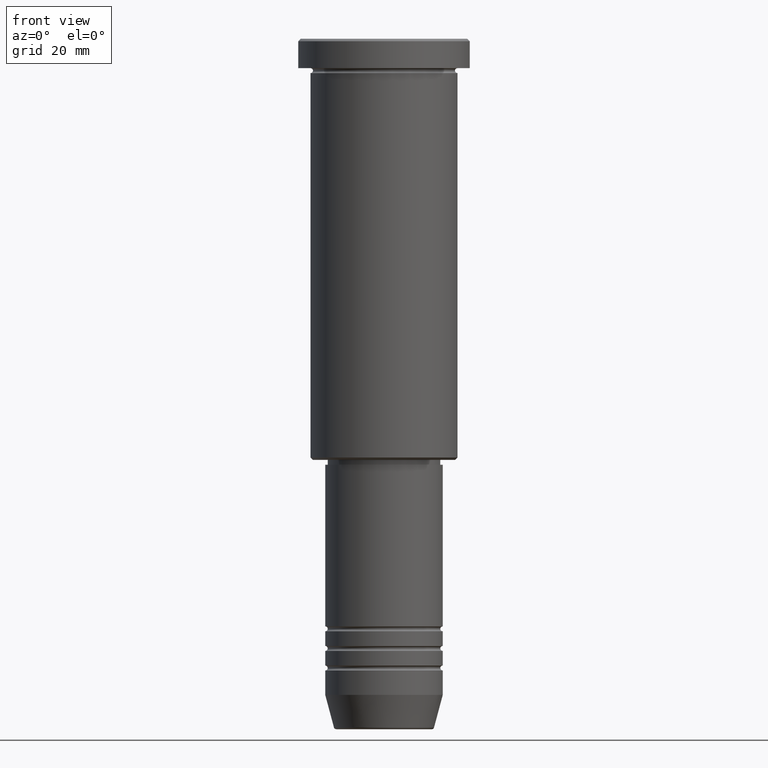
[diagram: clean part render]
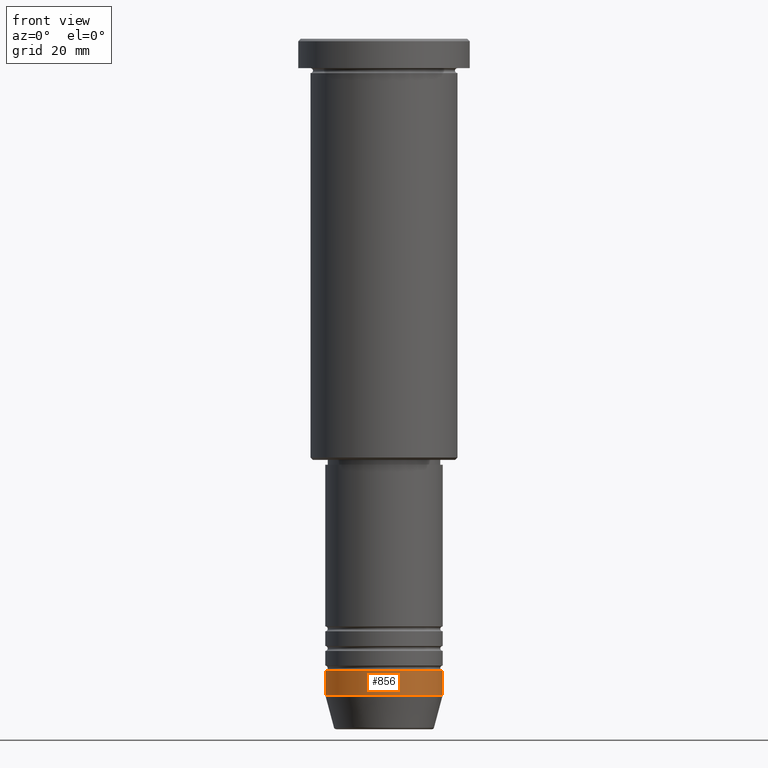
[diagram: same view with one face highlighted and labeled with its STEP entity id]
A machine part, front view. The second image highlights one B-rep face of the part: STEP entity #856.
In plain terms, the highlighted cylindrical surface (partial cylindrical patch) has radius 12 mm, axis along (-0, -0, 1).
Its self-contained STEP definition (entity closure, byte-faithful):
#29 = CARTESIAN_POINT ( 'NONE',  ( 0.000000000000000000, 0.000000000000000000, -134.0000000000000000 ) ) ;
#35 = ORIENTED_EDGE ( 'NONE', *, *, #421, .F. ) ;
#36 = EDGE_CURVE ( 'NONE', #484, #828, #177, .T. ) ;
#52 = AXIS2_PLACEMENT_3D ( 'NONE', #570, #754, #56 ) ;
#56 = DIRECTION ( 'NONE',  ( 1.000000000000000000, 0.000000000000000000, 0.000000000000000000 ) ) ;
#76 = CARTESIAN_POINT ( 'NONE',  ( -12.00000000000000000, 1.469576158976823947E-15, 0.000000000000000000 ) ) ;
#88 = CARTESIAN_POINT ( 'NONE',  ( -12.00000000000000000, 1.469576158976823947E-15, -134.0000000000000000 ) ) ;
#95 = CARTESIAN_POINT ( 'NONE',  ( 12.00000000000000000, 0.000000000000000000, -134.0000000000000000 ) ) ;
#172 = CARTESIAN_POINT ( 'NONE',  ( 12.00000000000000000, 0.000000000000000000, 0.000000000000000000 ) ) ;
#177 = LINE ( 'NONE', #172, #418 ) ;
#246 = ORIENTED_EDGE ( 'NONE', *, *, #36, .T. ) ;
#265 = DIRECTION ( 'NONE',  ( -0.000000000000000000, -0.000000000000000000, 1.000000000000000000 ) ) ;
#340 = LINE ( 'NONE', #76, #1081 ) ;
#341 = CIRCLE ( 'NONE', #476, 12.00000000000000000 ) ;
#351 = DIRECTION ( 'NONE',  ( -0.000000000000000000, -0.000000000000000000, 1.000000000000000000 ) ) ;
#418 = VECTOR ( 'NONE', #351, 1000.000000000000000 ) ;
#421 = EDGE_CURVE ( 'NONE', #727, #803, #340, .T. ) ;
#464 = CARTESIAN_POINT ( 'NONE',  ( 12.00000000000000000, 0.000000000000000000, -129.0000000000000000 ) ) ;
#474 = DIRECTION ( 'NONE',  ( -0.000000000000000000, -0.000000000000000000, 1.000000000000000000 ) ) ;
#476 = AXIS2_PLACEMENT_3D ( 'NONE', #29, #474, #663 ) ;
#484 = VERTEX_POINT ( 'NONE', #95 ) ;
#570 = CARTESIAN_POINT ( 'NONE',  ( 0.000000000000000000, 0.000000000000000000, -129.0000000000000000 ) ) ;
#596 = EDGE_LOOP ( 'NONE', ( #35, #1020, #246, #1132 ) ) ;
#621 = EDGE_CURVE ( 'NONE', #727, #484, #341, .T. ) ;
#652 = CYLINDRICAL_SURFACE ( 'NONE', #792, 12.00000000000000000 ) ;
#659 = CARTESIAN_POINT ( 'NONE',  ( 0.000000000000000000, 0.000000000000000000, 0.000000000000000000 ) ) ;
#661 = EDGE_CURVE ( 'NONE', #803, #828, #1087, .T. ) ;
#663 = DIRECTION ( 'NONE',  ( 1.000000000000000000, 0.000000000000000000, 0.000000000000000000 ) ) ;
#727 = VERTEX_POINT ( 'NONE', #88 ) ;
#754 = DIRECTION ( 'NONE',  ( -0.000000000000000000, -0.000000000000000000, 1.000000000000000000 ) ) ;
#792 = AXIS2_PLACEMENT_3D ( 'NONE', #659, #1025, #921 ) ;
#803 = VERTEX_POINT ( 'NONE', #850 ) ;
#827 = FACE_OUTER_BOUND ( 'NONE', #596, .T. ) ;
#828 = VERTEX_POINT ( 'NONE', #464 ) ;
#850 = CARTESIAN_POINT ( 'NONE',  ( -12.00000000000000000, 1.469576158976823947E-15, -129.0000000000000000 ) ) ;
#856 = ADVANCED_FACE ( 'NONE', ( #827 ), #652, .T. ) ;
#921 = DIRECTION ( 'NONE',  ( 1.000000000000000000, 0.000000000000000000, 0.000000000000000000 ) ) ;
#1020 = ORIENTED_EDGE ( 'NONE', *, *, #621, .T. ) ;
#1025 = DIRECTION ( 'NONE',  ( -0.000000000000000000, -0.000000000000000000, 1.000000000000000000 ) ) ;
#1081 = VECTOR ( 'NONE', #265, 1000.000000000000000 ) ;
#1087 = CIRCLE ( 'NONE', #52, 12.00000000000000000 ) ;
#1132 = ORIENTED_EDGE ( 'NONE', *, *, #661, .F. ) ;